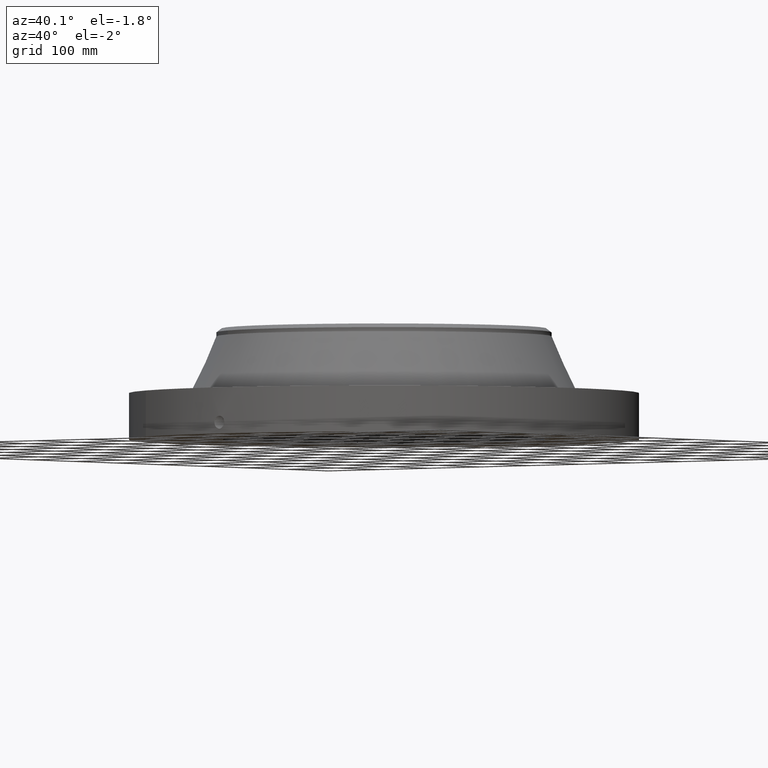
[diagram: clean part render]
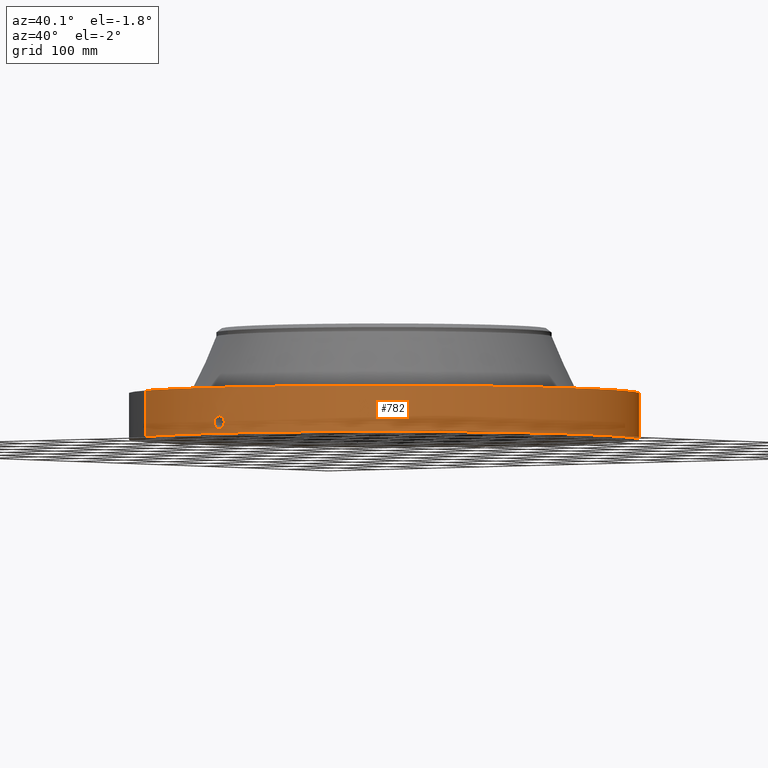
[diagram: same view with one face highlighted and labeled with its STEP entity id]
A machine part, auxiliary view. The second image highlights one B-rep face of the part: STEP entity #782.
In plain terms, the highlighted cylindrical surface (partial cylindrical patch) has radius 387.35 mm, axis along (0, 0, -1).
Its self-contained STEP definition (entity closure, byte-faithful):
#38=AXIS2_PLACEMENT_3D('Cylinder Axis2P3D',#35,#36,#37) ;
#169=AXIS2_PLACEMENT_3D('Circle Axis2P3D',#167,#168,$) ;
#686=AXIS2_PLACEMENT_3D('Circle Axis2P3D',#684,#685,$) ;
#35=CARTESIAN_POINT('Axis2P3D Location',(0.,0.,3.56000000001)) ;
#44=CARTESIAN_POINT('Vertex',(-7.31123946374,-13.3831340689,0.250000000001)) ;
#46=CARTESIAN_POINT('Vertex',(7.31123946374,13.3831340689,0.250000000001)) ;
#49=CARTESIAN_POINT('Line Origine',(-7.31123946374,-13.3831340689,1.62500000001)) ;
#53=CARTESIAN_POINT('Vertex',(-7.31123946374,-13.3831340689,3.00000000001)) ;
#60=CARTESIAN_POINT('Vertex',(7.31123946374,13.3831340689,3.00000000001)) ;
#63=CARTESIAN_POINT('Line Origine',(7.31123946374,13.3831340689,1.62500000001)) ;
#167=CARTESIAN_POINT('Axis2P3D Location',(0.,0.,0.250000000001)) ;
#684=CARTESIAN_POINT('Axis2P3D Location',(0.,0.,3.00000000001)) ;
#696=CARTESIAN_POINT('Control Point',(0.000716049760908,-15.2499999833,1.29411846129)) ;
#697=CARTESIAN_POINT('Control Point',(0.0189701072527,-15.2499991261,1.29408159437)) ;
#698=CARTESIAN_POINT('Control Point',(0.0372209751304,-15.2499652355,1.29262936671)) ;
#699=CARTESIAN_POINT('Control Point',(0.0552509399612,-15.2498999123,1.28977927812)) ;
#700=CARTESIAN_POINT('Vertex',(0.000715697200082,-15.2499999833,1.29411851055)) ;
#702=CARTESIAN_POINT('Vertex',(0.055242138106,-15.2499001965,1.28978068759)) ;
#706=CARTESIAN_POINT('Control Point',(0.0552420427631,-15.2498999445,1.28978014022)) ;
#707=CARTESIAN_POINT('Control Point',(0.0956981569457,-15.2497533942,1.28536268072)) ;
#708=CARTESIAN_POINT('Control Point',(0.135516524693,-15.2494419834,1.27358724127)) ;
#709=CARTESIAN_POINT('Control Point',(0.172195687342,-15.2490277935,1.25523274047)) ;
#710=CARTESIAN_POINT('Vertex',(0.172195687342,-15.2490277935,1.25523274047)) ;
#714=CARTESIAN_POINT('Control Point',(0.0310152642592,-15.2499684608,0.53118928844)) ;
#715=CARTESIAN_POINT('Control Point',(0.0961823380209,-15.2498359245,0.539436739133)) ;
#716=CARTESIAN_POINT('Control Point',(0.159294043507,-15.2493594722,0.561293751304)) ;
#717=CARTESIAN_POINT('Control Point',(0.216401137066,-15.2485887094,0.596098828652)) ;
#718=CARTESIAN_POINT('Control Point',(0.288819771736,-15.2473275345,0.664189975015)) ;
#719=CARTESIAN_POINT('Control Point',(0.336428392914,-15.2462994751,0.748671469576)) ;
#720=CARTESIAN_POINT('Control Point',(0.349472606078,-15.2460004619,0.778732970464)) ;
#721=CARTESIAN_POINT('Control Point',(0.371687708465,-15.2454753168,0.848970818057)) ;
#722=CARTESIAN_POINT('Control Point',(0.377175372901,-15.2453335918,0.92214120384)) ;
#723=CARTESIAN_POINT('Control Point',(0.374910288473,-15.2453911791,0.962947952497)) ;
#724=CARTESIAN_POINT('Control Point',(0.356496036617,-15.245851249,1.06072433244)) ;
#725=CARTESIAN_POINT('Control Point',(0.308136791885,-15.2469313731,1.14794325789)) ;
#726=CARTESIAN_POINT('Control Point',(0.26981807978,-15.2477093271,1.19323963338)) ;
#727=CARTESIAN_POINT('Control Point',(0.223535778777,-15.2484480489,1.22954180689)) ;
#728=CARTESIAN_POINT('Control Point',(0.172195687342,-15.2490277935,1.25523274047)) ;
#729=CARTESIAN_POINT('Vertex',(0.0310152642592,-15.2499684608,0.53118928844)) ;
#733=CARTESIAN_POINT('Control Point',(0.0310152642592,-15.2499684608,0.53118928844)) ;
#734=CARTESIAN_POINT('Control Point',(0.0206719752859,-15.2499894969,0.53087456983)) ;
#735=CARTESIAN_POINT('Control Point',(0.0103211166376,-15.2500000019,0.530936539703)) ;
#736=CARTESIAN_POINT('Control Point',(-2.72878354802E-006,-15.2500000001,0.531374667806)) ;
#737=CARTESIAN_POINT('Vertex',(-2.72878354471E-006,-15.2500000001,0.531374667806)) ;
#741=CARTESIAN_POINT('Control Point',(-0.192625061438,-15.2487834134,0.58741326924)) ;
#742=CARTESIAN_POINT('Control Point',(-0.149005457566,-15.2493344231,0.562040395764)) ;
#743=CARTESIAN_POINT('Control Point',(-0.101116386699,-15.2497737091,0.543779824758)) ;
#744=CARTESIAN_POINT('Control Point',(-0.0508056148362,-15.249999991,0.533530663288)) ;
#745=CARTESIAN_POINT('Control Point',(-2.72878352091E-006,-15.2500000001,0.531374667806)) ;
#746=CARTESIAN_POINT('Vertex',(-0.192625061438,-15.2487834134,0.58741326924)) ;
#750=CARTESIAN_POINT('Control Point',(-0.192625061438,-15.2487834134,0.58741326924)) ;
#751=CARTESIAN_POINT('Control Point',(-0.249453783227,-15.2480655439,0.620469689011)) ;
#752=CARTESIAN_POINT('Control Point',(-0.299509163553,-15.2471684596,0.664842822415)) ;
#753=CARTESIAN_POINT('Control Point',(-0.339645810454,-15.2462572537,0.718973028949)) ;
#754=CARTESIAN_POINT('Control Point',(-0.383846820938,-15.2451782415,0.817171323305)) ;
#755=CARTESIAN_POINT('Control Point',(-0.392394948556,-15.2449495023,0.922456432646)) ;
#756=CARTESIAN_POINT('Control Point',(-0.390268294812,-15.2450057477,0.962621078166)) ;
#757=CARTESIAN_POINT('Control Point',(-0.376095244244,-15.2453740937,1.03752589674)) ;
#758=CARTESIAN_POINT('Control Point',(-0.343961436322,-15.2461332323,1.10595638764)) ;
#759=CARTESIAN_POINT('Control Point',(-0.324884519532,-15.2465612243,1.13637813142)) ;
#760=CARTESIAN_POINT('Control Point',(-0.263167036715,-15.2478271655,1.2127360987)) ;
#761=CARTESIAN_POINT('Control Point',(-0.180082080077,-15.2490857223,1.26567044337)) ;
#762=CARTESIAN_POINT('Control Point',(-0.121355009499,-15.2497029237,1.28768574766)) ;
#763=CARTESIAN_POINT('Control Point',(-0.0601974085835,-15.2500001022,1.29710564982)) ;
#764=CARTESIAN_POINT('Control Point',(2.58579355455E-005,-15.25,1.2941529843)) ;
#765=CARTESIAN_POINT('Vertex',(2.58579355472E-005,-15.25,1.2941529843)) ;
#769=CARTESIAN_POINT('Control Point',(0.000715697190474,-15.2499999833,1.29411851054)) ;
#770=CARTESIAN_POINT('Control Point',(0.00037080210737,-15.2499999995,1.29413607216)) ;
#771=CARTESIAN_POINT('Control Point',(2.58579405796E-005,-15.25,1.2941529843)) ;
#36=DIRECTION('Axis2P3D Direction',(0.,0.,-0.0393700787402)) ;
#37=DIRECTION('Axis2P3D XDirection',(0.0188750212049,0.0345504945626,0.)) ;
#50=DIRECTION('Vector Direction',(0.,0.,-0.0393700787402)) ;
#64=DIRECTION('Vector Direction',(0.,0.,-0.0393700787402)) ;
#168=DIRECTION('Axis2P3D Direction',(0.,0.,-0.0393700787402)) ;
#685=DIRECTION('Axis2P3D Direction',(0.,0.,-0.0393700787402)) ;
#51=VECTOR('Line Direction',#50,0.0393700787402) ;
#65=VECTOR('Line Direction',#64,0.0393700787402) ;
#690=ORIENTED_EDGE('',*,*,#171,.F.) ;
#691=ORIENTED_EDGE('',*,*,#67,.T.) ;
#692=ORIENTED_EDGE('',*,*,#688,.T.) ;
#693=ORIENTED_EDGE('',*,*,#55,.F.) ;
#774=ORIENTED_EDGE('',*,*,#704,.T.) ;
#775=ORIENTED_EDGE('',*,*,#712,.T.) ;
#776=ORIENTED_EDGE('',*,*,#731,.F.) ;
#777=ORIENTED_EDGE('',*,*,#739,.T.) ;
#778=ORIENTED_EDGE('',*,*,#748,.F.) ;
#779=ORIENTED_EDGE('',*,*,#767,.T.) ;
#780=ORIENTED_EDGE('',*,*,#772,.F.) ;
#781=FACE_BOUND('',#773,.T.) ;
#782=ADVANCED_FACE('PartBody',(#694,#781),#39,.T.) ;
#695=B_SPLINE_CURVE_WITH_KNOTS('',3,(#696,#697,#698,#699),.UNSPECIFIED.,.F.,.U.,(4,4),(34.6166020717,36.6417164856),.UNSPECIFIED.) ;
#705=B_SPLINE_CURVE_WITH_KNOTS('',3,(#706,#707,#708,#709),.UNSPECIFIED.,.F.,.U.,(4,4),(0.,4.57283024561),.UNSPECIFIED.) ;
#713=B_SPLINE_CURVE_WITH_KNOTS('',5,(#714,#715,#716,#717,#718,#719,#720,#721,#722,#723,#724,#725,#726,#727,#728),.UNSPECIFIED.,.F.,.U.,(6,3,3,3,6),(0.,11.4156301214,17.256385625,24.6134498915,35.2811567001),.UNSPECIFIED.) ;
#732=B_SPLINE_CURVE_WITH_KNOTS('',3,(#733,#734,#735,#736),.UNSPECIFIED.,.F.,.U.,(4,4),(0.,1.07896259327),.UNSPECIFIED.) ;
#740=B_SPLINE_CURVE_WITH_KNOTS('',4,(#741,#742,#743,#744,#745),.UNSPECIFIED.,.F.,.U.,(5,5),(0.,7.07932769711),.UNSPECIFIED.) ;
#749=B_SPLINE_CURVE_WITH_KNOTS('',5,(#750,#751,#752,#753,#754,#755,#756,#757,#758,#759,#760,#761,#762,#763,#764),.UNSPECIFIED.,.F.,.U.,(6,3,3,3,6),(0.,11.5289086225,18.6079826552,25.029991733,36.2869702264),.UNSPECIFIED.) ;
#768=B_SPLINE_CURVE_WITH_KNOTS('',2,(#769,#770,#771),.UNSPECIFIED.,.F.,.U.,(3,3),(1.021811413,1.04760230385),.UNSPECIFIED.) ;
#170=CIRCLE('generated circle',#169,15.2500000001) ;
#687=CIRCLE('generated circle',#686,15.2500000001) ;
#39=CYLINDRICAL_SURFACE('generated cylinder',#38,15.2500000001) ;
#55=EDGE_CURVE('',#45,#54,#52,.F.) ;
#67=EDGE_CURVE('',#47,#61,#66,.F.) ;
#171=EDGE_CURVE('',#47,#45,#170,.T.) ;
#688=EDGE_CURVE('',#61,#54,#687,.T.) ;
#704=EDGE_CURVE('',#701,#703,#695,.T.) ;
#712=EDGE_CURVE('',#703,#711,#705,.T.) ;
#731=EDGE_CURVE('',#730,#711,#713,.T.) ;
#739=EDGE_CURVE('',#730,#738,#732,.T.) ;
#748=EDGE_CURVE('',#747,#738,#740,.T.) ;
#767=EDGE_CURVE('',#747,#766,#749,.T.) ;
#772=EDGE_CURVE('',#701,#766,#768,.T.) ;
#689=EDGE_LOOP('',(#690,#691,#692,#693)) ;
#773=EDGE_LOOP('',(#774,#775,#776,#777,#778,#779,#780)) ;
#694=FACE_OUTER_BOUND('',#689,.T.) ;
#52=LINE('Line',#49,#51) ;
#66=LINE('Line',#63,#65) ;
#45=VERTEX_POINT('',#44) ;
#47=VERTEX_POINT('',#46) ;
#54=VERTEX_POINT('',#53) ;
#61=VERTEX_POINT('',#60) ;
#701=VERTEX_POINT('',#700) ;
#703=VERTEX_POINT('',#702) ;
#711=VERTEX_POINT('',#710) ;
#730=VERTEX_POINT('',#729) ;
#738=VERTEX_POINT('',#737) ;
#747=VERTEX_POINT('',#746) ;
#766=VERTEX_POINT('',#765) ;